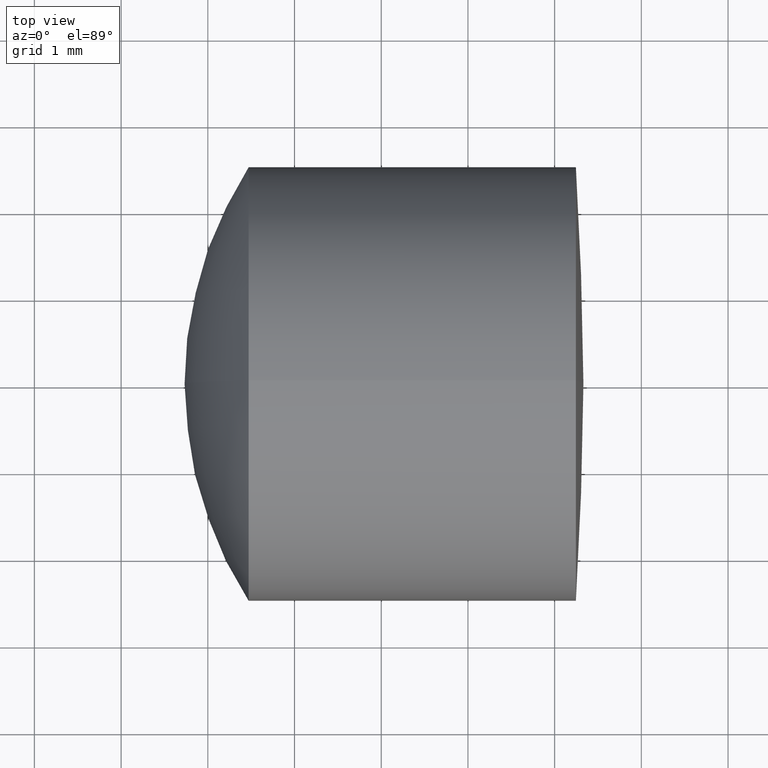
[diagram: clean part render]
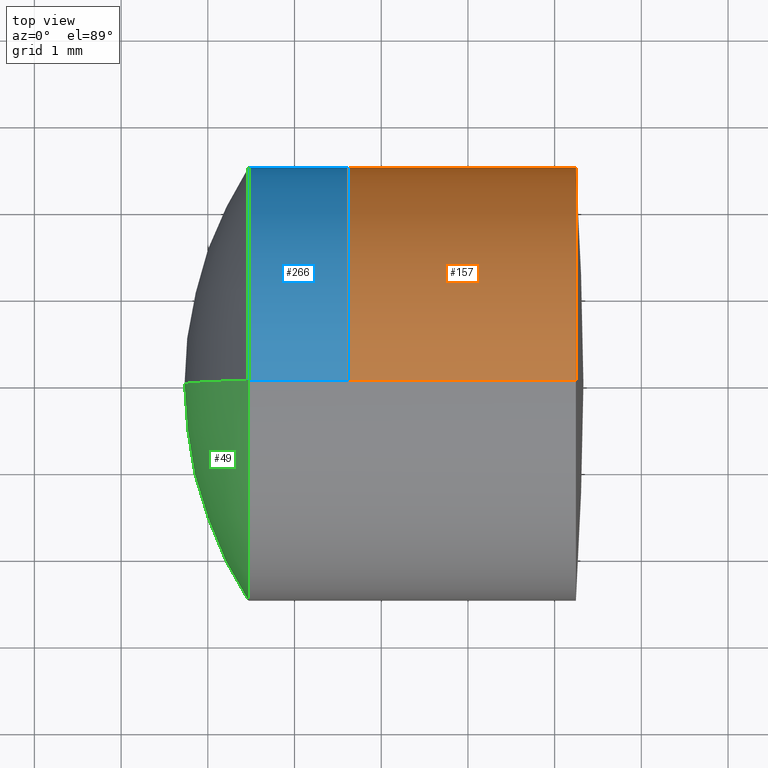
[diagram: same view with three faces highlighted in distinct colors, each labeled with its STEP entity id]
A machine part, top view with three faces highlighted in distinct colors.
Their STEP definitions:

[orange] entity #157 — the highlighted cylindrical surface (partial cylindrical patch) has radius 2.5 mm, axis along (-1, -0, -0).
#1 = ORIENTED_EDGE ( 'NONE', *, *, #313, .T. ) ;
#11 = CARTESIAN_POINT ( 'NONE',  ( 258.6254749675014800, 0.0000000000000000000, 2.500000000000030200 ) ) ;
#33 = ORIENTED_EDGE ( 'NONE', *, *, #154, .T. ) ;
#43 = CARTESIAN_POINT ( 'NONE',  ( 261.2452385937934300, 0.0000000000000000000, 2.500000000000030200 ) ) ;
#62 = CARTESIAN_POINT ( 'NONE',  ( -0.5519199926577972300, 0.0000000000000000000, 2.500000000000030200 ) ) ;
#64 = CIRCLE ( 'NONE', #221, 2.500000000000030200 ) ;
#66 = DIRECTION ( 'NONE',  ( -1.000000000000000000, -0.0000000000000000000, -0.0000000000000000000 ) ) ;
#71 = CARTESIAN_POINT ( 'NONE',  ( 261.2452385937934300, 3.061616997868419600E-016, -2.500000000000030200 ) ) ;
#92 = DIRECTION ( 'NONE',  ( -1.000000000000000000, -0.0000000000000000000, -0.0000000000000000000 ) ) ;
#99 = AXIS2_PLACEMENT_3D ( 'NONE', #143, #123, #121 ) ;
#102 = CARTESIAN_POINT ( 'NONE',  ( -0.5519199926577972300, 3.061616997868419600E-016, -2.500000000000030200 ) ) ;
#103 = CYLINDRICAL_SURFACE ( 'NONE', #138, 2.500000000000030200 ) ;
#116 = DIRECTION ( 'NONE',  ( 0.0000000000000000000, 0.0000000000000000000, 1.000000000000000000 ) ) ;
#121 = DIRECTION ( 'NONE',  ( 0.0000000000000000000, 0.0000000000000000000, 1.000000000000000000 ) ) ;
#123 = DIRECTION ( 'NONE',  ( -1.000000000000000000, -0.0000000000000000000, -0.0000000000000000000 ) ) ;
#136 = EDGE_CURVE ( 'NONE', #174, #312, #279, .T. ) ;
#137 = VECTOR ( 'NONE', #92, 1000.000000000000000 ) ;
#138 = AXIS2_PLACEMENT_3D ( 'NONE', #141, #66, #116 ) ;
#141 = CARTESIAN_POINT ( 'NONE',  ( -0.5519199926577972300, 0.0000000000000000000, 0.0000000000000000000 ) ) ;
#143 = CARTESIAN_POINT ( 'NONE',  ( 258.6254749675014800, 0.0000000000000000000, 0.0000000000000000000 ) ) ;
#146 = DIRECTION ( 'NONE',  ( -1.000000000000000000, -0.0000000000000000000, -0.0000000000000000000 ) ) ;
#154 = EDGE_CURVE ( 'NONE', #159, #312, #268, .T. ) ;
#157 = ADVANCED_FACE ( 'NONE', ( #296 ), #103, .T. ) ;
#159 = VERTEX_POINT ( 'NONE', #71 ) ;
#163 = VERTEX_POINT ( 'NONE', #43 ) ;
#174 = VERTEX_POINT ( 'NONE', #11 ) ;
#181 = DIRECTION ( 'NONE',  ( -1.000000000000000000, -0.0000000000000000000, -0.0000000000000000000 ) ) ;
#188 = LINE ( 'NONE', #62, #324 ) ;
#219 = EDGE_CURVE ( 'NONE', #163, #174, #188, .T. ) ;
#221 = AXIS2_PLACEMENT_3D ( 'NONE', #316, #181, #303 ) ;
#222 = ORIENTED_EDGE ( 'NONE', *, *, #219, .F. ) ;
#267 = CARTESIAN_POINT ( 'NONE',  ( 258.6254749675014800, 3.061616997868420100E-016, -2.500000000000030200 ) ) ;
#268 = LINE ( 'NONE', #102, #137 ) ;
#279 = CIRCLE ( 'NONE', #99, 2.500000000000030200 ) ;
#293 = EDGE_LOOP ( 'NONE', ( #1, #33, #294, #222 ) ) ;
#294 = ORIENTED_EDGE ( 'NONE', *, *, #136, .F. ) ;
#296 = FACE_OUTER_BOUND ( 'NONE', #293, .T. ) ;
#303 = DIRECTION ( 'NONE',  ( 0.0000000000000000000, 0.0000000000000000000, 1.000000000000000000 ) ) ;
#312 = VERTEX_POINT ( 'NONE', #267 ) ;
#313 = EDGE_CURVE ( 'NONE', #163, #159, #64, .T. ) ;
#316 = CARTESIAN_POINT ( 'NONE',  ( 261.2452385937934300, 0.0000000000000000000, 0.0000000000000000000 ) ) ;
#324 = VECTOR ( 'NONE', #146, 1000.000000000000000 ) ;

[blue] entity #266 — the highlighted cylindrical surface (partial cylindrical patch) has radius 2.5 mm, axis along (-1, -0, -0).
#4 = DIRECTION ( 'NONE',  ( 0.0000000000000000000, 0.0000000000000000000, 1.000000000000000000 ) ) ;
#7 = DIRECTION ( 'NONE',  ( -1.000000000000000000, -0.0000000000000000000, -0.0000000000000000000 ) ) ;
#16 = ORIENTED_EDGE ( 'NONE', *, *, #299, .F. ) ;
#18 = AXIS2_PLACEMENT_3D ( 'NONE', #38, #65, #4 ) ;
#25 = VERTEX_POINT ( 'NONE', #278 ) ;
#32 = CARTESIAN_POINT ( 'NONE',  ( 257.4708021428207900, 0.0000000000000000000, -2.500000000000000400 ) ) ;
#38 = CARTESIAN_POINT ( 'NONE',  ( 124.5233095260452400, 0.0000000000000000000, 0.0000000000000000000 ) ) ;
#39 = AXIS2_PLACEMENT_3D ( 'NONE', #118, #252, #233 ) ;
#61 = CARTESIAN_POINT ( 'NONE',  ( 124.5233095260452400, 3.061616997868383100E-016, -2.500000000000000000 ) ) ;
#65 = DIRECTION ( 'NONE',  ( -1.000000000000000000, -0.0000000000000000000, -0.0000000000000000000 ) ) ;
#72 = CARTESIAN_POINT ( 'NONE',  ( 257.4708021428207900, 0.0000000000000000000, 0.0000000000000000000 ) ) ;
#101 = LINE ( 'NONE', #306, #140 ) ;
#108 = VERTEX_POINT ( 'NONE', #175 ) ;
#114 = LINE ( 'NONE', #61, #345 ) ;
#118 = CARTESIAN_POINT ( 'NONE',  ( 258.6254749675014800, 0.0000000000000000000, 0.0000000000000000000 ) ) ;
#132 = DIRECTION ( 'NONE',  ( -1.000000000000000000, -0.0000000000000000000, -0.0000000000000000000 ) ) ;
#140 = VECTOR ( 'NONE', #311, 1000.000000000000000 ) ;
#155 = DIRECTION ( 'NONE',  ( 0.0000000000000000000, 0.0000000000000000000, 1.000000000000000000 ) ) ;
#164 = CIRCLE ( 'NONE', #317, 2.500000000000000400 ) ;
#168 = CARTESIAN_POINT ( 'NONE',  ( 257.4708021428207900, -3.061616997868383100E-016, 2.500000000000000400 ) ) ;
#170 = EDGE_CURVE ( 'NONE', #108, #208, #114, .T. ) ;
#175 = CARTESIAN_POINT ( 'NONE',  ( 258.6254749675014800, 3.061616997868383100E-016, -2.499999999999999600 ) ) ;
#191 = FACE_OUTER_BOUND ( 'NONE', #321, .T. ) ;
#195 = ORIENTED_EDGE ( 'NONE', *, *, #170, .T. ) ;
#208 = VERTEX_POINT ( 'NONE', #32 ) ;
#215 = EDGE_CURVE ( 'NONE', #25, #108, #292, .T. ) ;
#233 = DIRECTION ( 'NONE',  ( 0.0000000000000000000, 0.0000000000000000000, 1.000000000000000000 ) ) ;
#236 = ORIENTED_EDGE ( 'NONE', *, *, #287, .F. ) ;
#252 = DIRECTION ( 'NONE',  ( -1.000000000000000000, -0.0000000000000000000, -0.0000000000000000000 ) ) ;
#266 = ADVANCED_FACE ( 'NONE', ( #191 ), #328, .T. ) ;
#278 = CARTESIAN_POINT ( 'NONE',  ( 258.6254749675014800, 0.0000000000000000000, 2.499999999999999600 ) ) ;
#287 = EDGE_CURVE ( 'NONE', #25, #340, #101, .T. ) ;
#292 = CIRCLE ( 'NONE', #39, 2.499999999999999600 ) ;
#299 = EDGE_CURVE ( 'NONE', #340, #208, #164, .T. ) ;
#306 = CARTESIAN_POINT ( 'NONE',  ( 124.5233095260452400, 0.0000000000000000000, 2.500000000000000000 ) ) ;
#311 = DIRECTION ( 'NONE',  ( -1.000000000000000000, -0.0000000000000000000, -0.0000000000000000000 ) ) ;
#317 = AXIS2_PLACEMENT_3D ( 'NONE', #72, #132, #155 ) ;
#320 = ORIENTED_EDGE ( 'NONE', *, *, #215, .T. ) ;
#321 = EDGE_LOOP ( 'NONE', ( #320, #195, #16, #236 ) ) ;
#328 = CYLINDRICAL_SURFACE ( 'NONE', #18, 2.500000000000000000 ) ;
#340 = VERTEX_POINT ( 'NONE', #168 ) ;
#345 = VECTOR ( 'NONE', #7, 1000.000000000000000 ) ;

[green] entity #49 — the highlighted spherical surface has radius 4.6 mm.
#32 = CARTESIAN_POINT ( 'NONE',  ( 257.4708021428207900, 0.0000000000000000000, -2.500000000000000400 ) ) ;
#49 = ADVANCED_FACE ( 'NONE', ( #186 ), #135, .T. ) ;
#73 = ORIENTED_EDGE ( 'NONE', *, *, #334, .F. ) ;
#79 = CIRCLE ( 'NONE', #245, 4.600000000000010300 ) ;
#89 = ORIENTED_EDGE ( 'NONE', *, *, #106, .T. ) ;
#90 = DIRECTION ( 'NONE',  ( 0.0000000000000000000, 0.0000000000000000000, -1.000000000000000000 ) ) ;
#95 = DIRECTION ( 'NONE',  ( 0.0000000000000000000, 0.0000000000000000000, 1.000000000000000000 ) ) ;
#97 = DIRECTION ( 'NONE',  ( -1.000000000000000000, -0.0000000000000000000, -0.0000000000000000000 ) ) ;
#98 = EDGE_CURVE ( 'NONE', #208, #340, #149, .T. ) ;
#106 = EDGE_CURVE ( 'NONE', #340, #244, #79, .T. ) ;
#111 = AXIS2_PLACEMENT_3D ( 'NONE', #262, #271, #90 ) ;
#119 = CARTESIAN_POINT ( 'NONE',  ( 261.3321490580823900, 0.0000000000000000000, 4.129147144605070300E-016 ) ) ;
#120 = ORIENTED_EDGE ( 'NONE', *, *, #98, .T. ) ;
#135 = SPHERICAL_SURFACE ( 'NONE', #111, 4.600000000000010300 ) ;
#147 = DIRECTION ( 'NONE',  ( 0.0000000000000000000, 0.0000000000000000000, 1.000000000000000000 ) ) ;
#149 = CIRCLE ( 'NONE', #165, 2.500000000000000400 ) ;
#165 = AXIS2_PLACEMENT_3D ( 'NONE', #182, #97, #95 ) ;
#168 = CARTESIAN_POINT ( 'NONE',  ( 257.4708021428207900, -3.061616997868383100E-016, 2.500000000000000400 ) ) ;
#182 = CARTESIAN_POINT ( 'NONE',  ( 257.4708021428207900, 0.0000000000000000000, 0.0000000000000000000 ) ) ;
#186 = FACE_OUTER_BOUND ( 'NONE', #269, .T. ) ;
#201 = DIRECTION ( 'NONE',  ( 0.0000000000000000000, 1.000000000000000000, -0.0000000000000000000 ) ) ;
#205 = DIRECTION ( 'NONE',  ( 0.0000000000000000000, 1.224646799147353200E-016, -1.000000000000000000 ) ) ;
#208 = VERTEX_POINT ( 'NONE', #32 ) ;
#209 = CARTESIAN_POINT ( 'NONE',  ( 261.3321490580823900, 0.0000000000000000000, 4.129147144605070300E-016 ) ) ;
#217 = DIRECTION ( 'NONE',  ( 0.0000000000000000000, -1.000000000000000000, -1.224646799147353200E-016 ) ) ;
#244 = VERTEX_POINT ( 'NONE', #322 ) ;
#245 = AXIS2_PLACEMENT_3D ( 'NONE', #209, #217, #205 ) ;
#262 = CARTESIAN_POINT ( 'NONE',  ( 261.3321490580823900, 0.0000000000000000000, 4.129147144605070300E-016 ) ) ;
#269 = EDGE_LOOP ( 'NONE', ( #120, #89, #73 ) ) ;
#271 = DIRECTION ( 'NONE',  ( -0.0000000000000000000, -1.000000000000000000, -0.0000000000000000000 ) ) ;
#276 = CIRCLE ( 'NONE', #338, 4.600000000000010300 ) ;
#322 = CARTESIAN_POINT ( 'NONE',  ( 256.7321490580823700, 0.0000000000000000000, 1.312459506566151800E-016 ) ) ;
#334 = EDGE_CURVE ( 'NONE', #208, #244, #276, .T. ) ;
#338 = AXIS2_PLACEMENT_3D ( 'NONE', #119, #201, #147 ) ;
#340 = VERTEX_POINT ( 'NONE', #168 ) ;